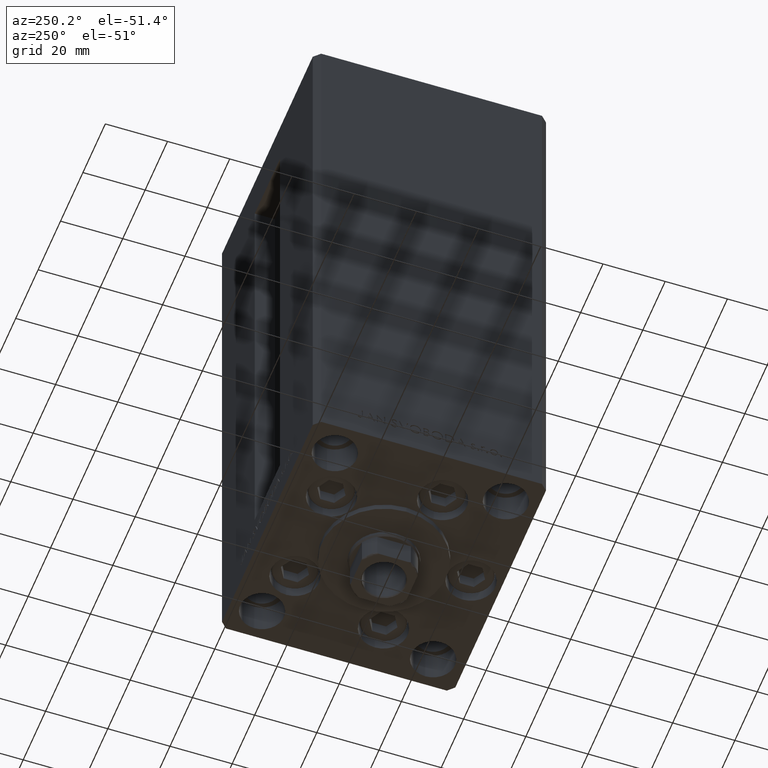
[diagram: clean part render]
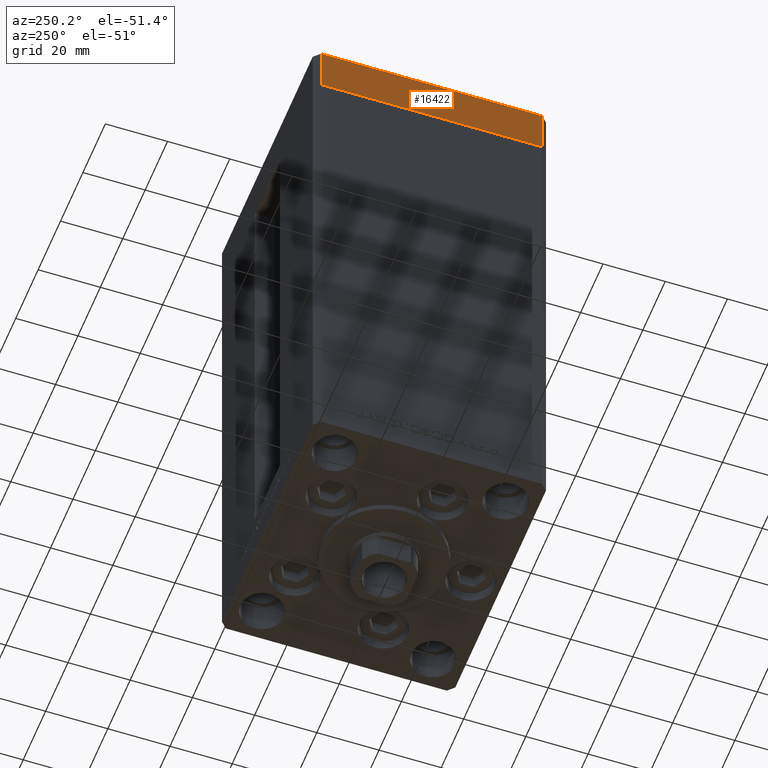
[diagram: same view with one face highlighted and labeled with its STEP entity id]
A machine part, auxiliary view. The second image highlights one B-rep face of the part: STEP entity #16422.
In plain terms, the highlighted planar face has unit normal (-1, -0, 0).
Its self-contained STEP definition (entity closure, byte-faithful):
#2235 = ORIENTED_EDGE ( 'NONE', *, *, #10382, .T. ) ;
#3790 = DIRECTION ( 'NONE',  ( -1.000000000000000000, -9.773090005503140331E-17, 0.000000000000000000 ) ) ;
#7171 = LINE ( 'NONE', #33332, #16267 ) ;
#7698 = DIRECTION ( 'NONE',  ( 0.000000000000000000, 0.000000000000000000, 1.000000000000000000 ) ) ;
#10382 = EDGE_CURVE ( 'NONE', #24271, #47693, #7171, .T. ) ;
#11611 = AXIS2_PLACEMENT_3D ( 'NONE', #22732, #3790, #49115 ) ;
#11787 = CARTESIAN_POINT ( 'NONE',  ( -42.50000000000000711, 35.49999999999997158, -15.00000000000000000 ) ) ;
#12127 = EDGE_CURVE ( 'NONE', #22882, #47693, #49136, .T. ) ;
#13103 = VECTOR ( 'NONE', #29984, 1000.000000000000000 ) ;
#16210 = CARTESIAN_POINT ( 'NONE',  ( -42.50000000000000000, -35.50000000000000711, -15.00000000000000000 ) ) ;
#16267 = VECTOR ( 'NONE', #25157, 1000.000000000000000 ) ;
#16422 = ADVANCED_FACE ( 'NONE', ( #18757 ), #26708, .T. ) ;
#18679 = LINE ( 'NONE', #26156, #30304 ) ;
#18757 = FACE_OUTER_BOUND ( 'NONE', #25215, .T. ) ;
#19139 = CARTESIAN_POINT ( 'NONE',  ( -42.50000000000000711, 35.49999999999997158, -15.00000000000000000 ) ) ;
#19390 = DIRECTION ( 'NONE',  ( 9.773090005503140331E-17, -1.000000000000000000, 0.000000000000000000 ) ) ;
#19915 = ORIENTED_EDGE ( 'NONE', *, *, #34631, .T. ) ;
#21339 = ORIENTED_EDGE ( 'NONE', *, *, #33157, .F. ) ;
#22732 = CARTESIAN_POINT ( 'NONE',  ( -42.50000000000000711, 35.49999999999997158, -15.00000000000000000 ) ) ;
#22882 = VERTEX_POINT ( 'NONE', #24562 ) ;
#24271 = VERTEX_POINT ( 'NONE', #16210 ) ;
#24562 = CARTESIAN_POINT ( 'NONE',  ( -42.50000000000000711, 35.49999999999997158, 0.000000000000000000 ) ) ;
#25157 = DIRECTION ( 'NONE',  ( 0.000000000000000000, 0.000000000000000000, 1.000000000000000000 ) ) ;
#25215 = EDGE_LOOP ( 'NONE', ( #49077, #21339, #19915, #2235 ) ) ;
#26156 = CARTESIAN_POINT ( 'NONE',  ( -42.50000000000000711, 35.49999999999997158, -15.00000000000000000 ) ) ;
#26708 = PLANE ( 'NONE',  #11611 ) ;
#26732 = CARTESIAN_POINT ( 'NONE',  ( -42.50000000000000711, 35.49999999999997158, 0.000000000000000000 ) ) ;
#28387 = CARTESIAN_POINT ( 'NONE',  ( -42.50000000000000000, -35.50000000000000711, 0.000000000000000000 ) ) ;
#29984 = DIRECTION ( 'NONE',  ( 9.773090005503140331E-17, -1.000000000000000000, 0.000000000000000000 ) ) ;
#30304 = VECTOR ( 'NONE', #7698, 1000.000000000000000 ) ;
#30334 = VECTOR ( 'NONE', #19390, 1000.000000000000000 ) ;
#33157 = EDGE_CURVE ( 'NONE', #35531, #22882, #18679, .T. ) ;
#33332 = CARTESIAN_POINT ( 'NONE',  ( -42.50000000000000000, -35.50000000000000711, -15.00000000000000000 ) ) ;
#34631 = EDGE_CURVE ( 'NONE', #35531, #24271, #45297, .T. ) ;
#35531 = VERTEX_POINT ( 'NONE', #11787 ) ;
#45297 = LINE ( 'NONE', #19139, #30334 ) ;
#47693 = VERTEX_POINT ( 'NONE', #28387 ) ;
#49077 = ORIENTED_EDGE ( 'NONE', *, *, #12127, .F. ) ;
#49115 = DIRECTION ( 'NONE',  ( 9.773090005503140331E-17, -1.000000000000000000, 0.000000000000000000 ) ) ;
#49136 = LINE ( 'NONE', #26732, #13103 ) ;